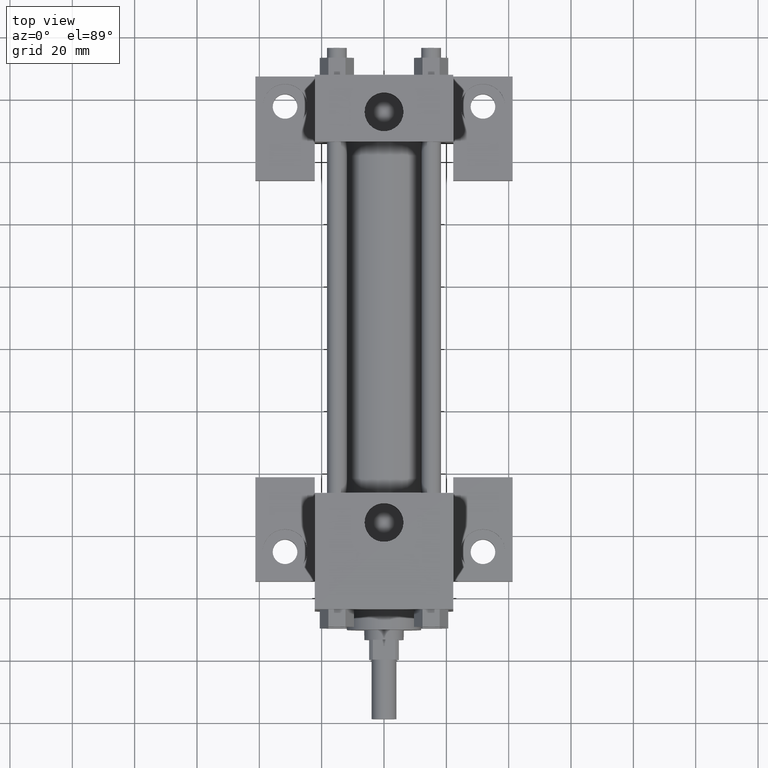
[diagram: clean part render]
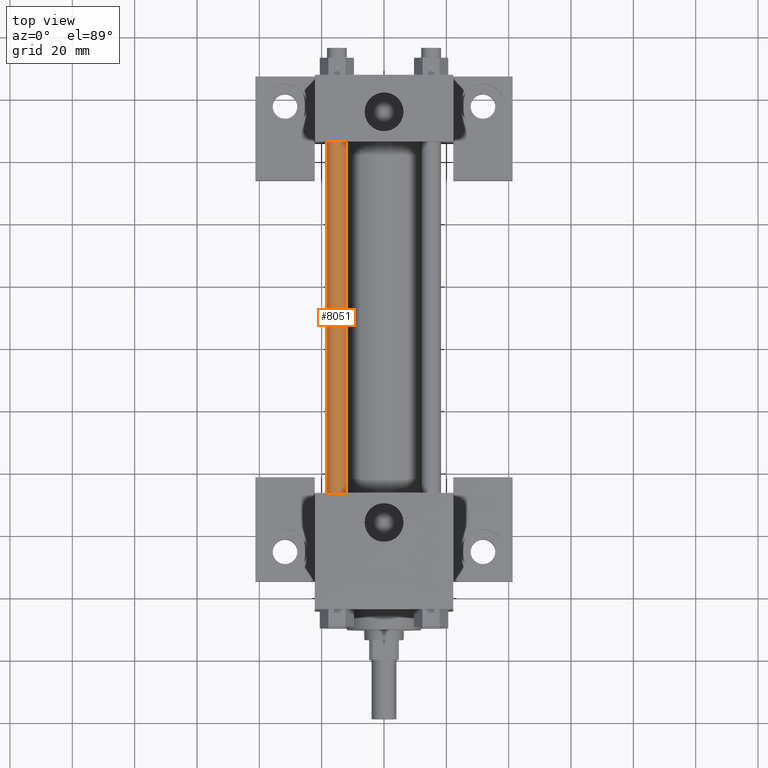
[diagram: same view with one face highlighted and labeled with its STEP entity id]
A machine part, top view. The second image highlights one B-rep face of the part: STEP entity #8051.
In plain terms, the highlighted cylindrical surface (bore or boss wall) has radius 3.175 mm, axis along (0, -1, 0).
Its self-contained STEP definition (entity closure, byte-faithful):
#1161=EDGE_CURVE('',#1167,#1167,#1162,.T.);
#1162=CIRCLE('',#1163,3.175000000E+000);
#1163=AXIS2_PLACEMENT_3D('',#1164,#1165,#1166);
#1164=CARTESIAN_POINT('',(-1.511300000E+001,5.318125000E+001,1.511300000E+001));
#1165=DIRECTION('',(0.0E+000,1.0E+000,0.0E+000));
#1166=DIRECTION('',(1.0E+000,0.0E+000,0.0E+000));
#1167=VERTEX_POINT('',#1168);
#1168=CARTESIAN_POINT('',(-1.193800000E+001,5.318125000E+001,1.511300000E+001));
#2111=FACE_OUTER_BOUND('',#2113,.T.);
#2112=FACE_BOUND('',#2114,.T.);
#2113=EDGE_LOOP('',(#2115));
#2114=EDGE_LOOP('',(#2116));
#2115=ORIENTED_EDGE('',*,*,#2170,.F.);
#2116=ORIENTED_EDGE('',*,*,#1161,.T.);
#2117=CYLINDRICAL_SURFACE('',#2118,3.175000000E+000);
#2118=AXIS2_PLACEMENT_3D('',#2119,#2120,#2121);
#2119=CARTESIAN_POINT('',(-1.511300000E+001,1.658937500E+002,1.511300000E+001));
#2120=DIRECTION('',(0.0E+000,-1.0E+000,0.0E+000));
#2121=DIRECTION('',(0.0E+000,0.0E+000,-1.0E+000));
#2170=EDGE_CURVE('',#2176,#2176,#2171,.T.);
#2171=CIRCLE('',#2172,3.175000000E+000);
#2172=AXIS2_PLACEMENT_3D('',#2173,#2174,#2175);
#2173=CARTESIAN_POINT('',(-1.511300000E+001,1.658937500E+002,1.511300000E+001));
#2174=DIRECTION('',(0.0E+000,1.0E+000,0.0E+000));
#2175=DIRECTION('',(1.0E+000,0.0E+000,0.0E+000));
#2176=VERTEX_POINT('',#2177);
#2177=CARTESIAN_POINT('',(-1.193800000E+001,1.658937500E+002,1.511300000E+001));
#8051=ADVANCED_FACE('',(#2111,#2112),#2117,.T.);